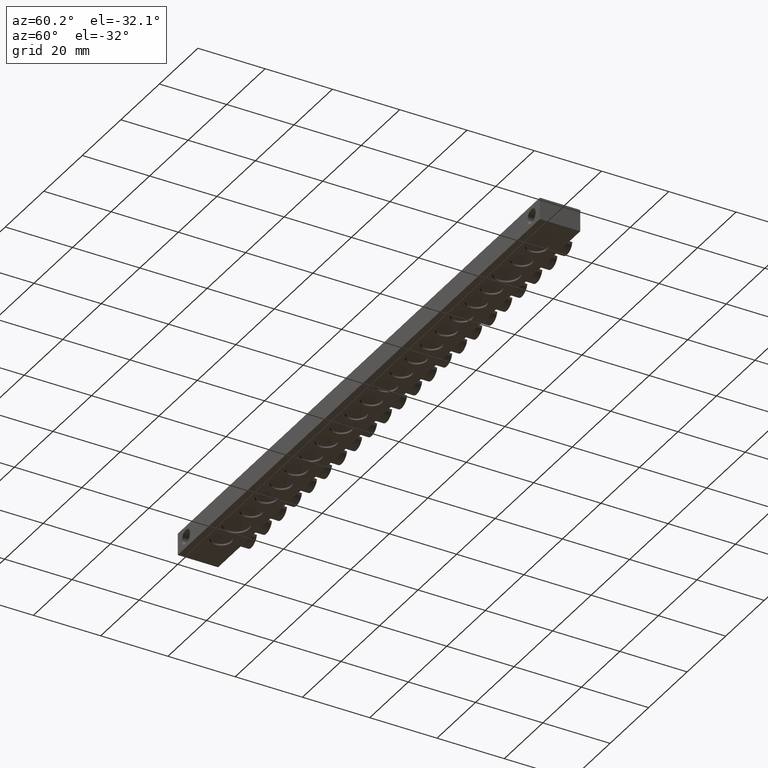
[diagram: clean part render]
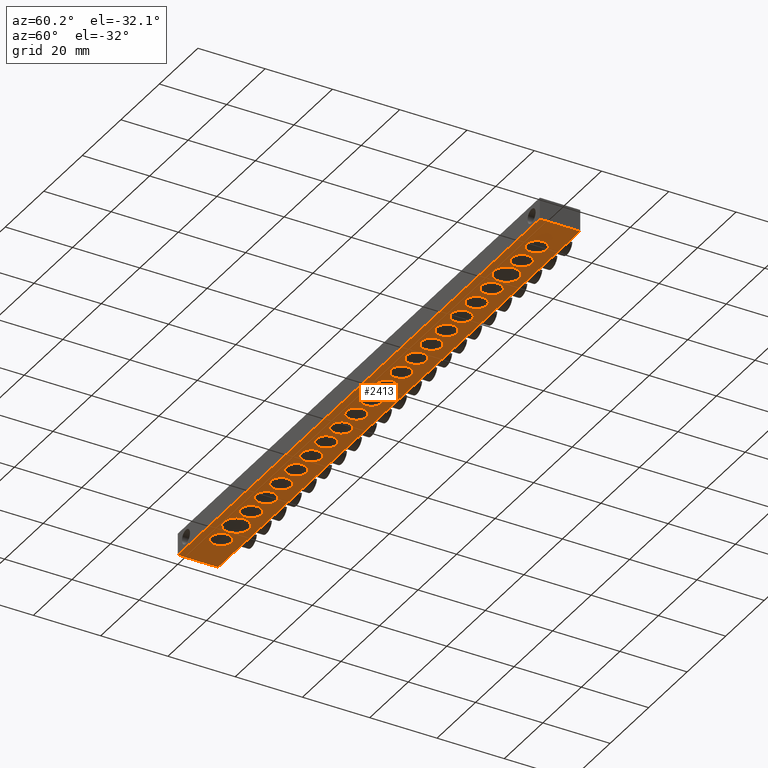
[diagram: same view with one face highlighted and labeled with its STEP entity id]
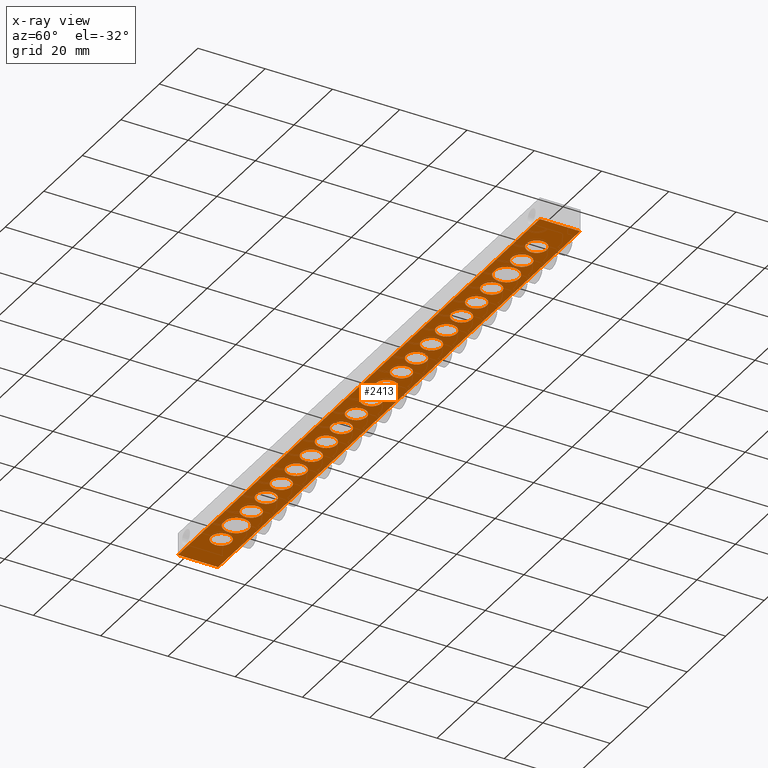
[diagram: x-ray of the same camera — body ghosted, the highlighted face saturated]
A machine part, auxiliary view. The second image highlights one B-rep face of the part: STEP entity #2413.
The next image is the same camera in x-ray: the body ghosted, the highlighted face saturated — about 0% of this face is hidden behind the body in this view.
In plain terms, the highlighted planar face has unit normal (0, 0, -1).
Its self-contained STEP definition (entity closure, byte-faithful):
#671 = ORIENTED_EDGE ( 'NONE', *, *, #2219, .F. ) ;
#734 = ORIENTED_EDGE ( 'NONE', *, *, #3153, .F. ) ;
#906 = EDGE_LOOP ( 'NONE', ( #7807, #7815 ) ) ;
#908 = EDGE_LOOP ( 'NONE', ( #7772, #7798 ) ) ;
#910 = EDGE_LOOP ( 'NONE', ( #7740, #7784 ) ) ;
#925 = EDGE_LOOP ( 'NONE', ( #7757, #7774 ) ) ;
#944 = EDGE_LOOP ( 'NONE', ( #7788, #7767 ) ) ;
#945 = EDGE_LOOP ( 'NONE', ( #7822, #7769 ) ) ;
#946 = EDGE_LOOP ( 'NONE', ( #7768, #7855 ) ) ;
#956 = EDGE_LOOP ( 'NONE', ( #7787, #7793 ) ) ;
#957 = EDGE_LOOP ( 'NONE', ( #7732, #7778 ) ) ;
#959 = EDGE_LOOP ( 'NONE', ( #671, #734 ) ) ;
#964 = EDGE_LOOP ( 'NONE', ( #7779, #7771 ) ) ;
#971 = EDGE_LOOP ( 'NONE', ( #7826, #7812 ) ) ;
#981 = EDGE_LOOP ( 'NONE', ( #7746, #7747 ) ) ;
#984 = EDGE_LOOP ( 'NONE', ( #7817, #7844 ) ) ;
#986 = EDGE_LOOP ( 'NONE', ( #7785, #7806 ) ) ;
#1003 = EDGE_LOOP ( 'NONE', ( #7765, #7750 ) ) ;
#1004 = EDGE_LOOP ( 'NONE', ( #7752, #7755 ) ) ;
#1018 = EDGE_LOOP ( 'NONE', ( #7840, #7800 ) ) ;
#1023 = EDGE_LOOP ( 'NONE', ( #7759, #7731 ) ) ;
#1025 = EDGE_LOOP ( 'NONE', ( #7760, #7761 ) ) ;
#1031 = EDGE_LOOP ( 'NONE', ( #7808, #7829 ) ) ;
#1034 = EDGE_LOOP ( 'NONE', ( #7853, #7828, #7825, #7818 ) ) ;
#1052 = EDGE_LOOP ( 'NONE', ( #7839, #7770 ) ) ;
#1360 = VERTEX_POINT ( 'NONE', #11014 ) ;
#1365 = VERTEX_POINT ( 'NONE', #11015 ) ;
#1366 = VERTEX_POINT ( 'NONE', #11024 ) ;
#1378 = VERTEX_POINT ( 'NONE', #11028 ) ;
#1379 = VERTEX_POINT ( 'NONE', #11040 ) ;
#1393 = VERTEX_POINT ( 'NONE', #11029 ) ;
#1400 = VERTEX_POINT ( 'NONE', #10997 ) ;
#1401 = VERTEX_POINT ( 'NONE', #11053 ) ;
#1408 = VERTEX_POINT ( 'NONE', #10999 ) ;
#1409 = VERTEX_POINT ( 'NONE', #11013 ) ;
#1413 = VERTEX_POINT ( 'NONE', #11035 ) ;
#1418 = VERTEX_POINT ( 'NONE', #11046 ) ;
#1419 = VERTEX_POINT ( 'NONE', #11047 ) ;
#1420 = VERTEX_POINT ( 'NONE', #11049 ) ;
#1421 = VERTEX_POINT ( 'NONE', #11051 ) ;
#1422 = VERTEX_POINT ( 'NONE', #11052 ) ;
#1424 = VERTEX_POINT ( 'NONE', #10993 ) ;
#1425 = VERTEX_POINT ( 'NONE', #11000 ) ;
#1426 = VERTEX_POINT ( 'NONE', #11001 ) ;
#1427 = VERTEX_POINT ( 'NONE', #11002 ) ;
#1428 = VERTEX_POINT ( 'NONE', #11003 ) ;
#1435 = VERTEX_POINT ( 'NONE', #11069 ) ;
#1437 = VERTEX_POINT ( 'NONE', #11102 ) ;
#1440 = VERTEX_POINT ( 'NONE', #11087 ) ;
#1449 = VERTEX_POINT ( 'NONE', #11093 ) ;
#1453 = VERTEX_POINT ( 'NONE', #11066 ) ;
#1455 = VERTEX_POINT ( 'NONE', #11109 ) ;
#1464 = VERTEX_POINT ( 'NONE', #11100 ) ;
#2154 = EDGE_CURVE ( 'NONE', #10692, #10678, #5767, .T. ) ;
#2163 = EDGE_CURVE ( 'NONE', #10698, #10700, #5827, .T. ) ;
#2195 = EDGE_CURVE ( 'NONE', #10732, #10731, #7033, .T. ) ;
#2219 = EDGE_CURVE ( 'NONE', #10714, #10666, #7105, .T. ) ;
#2221 = EDGE_CURVE ( 'NONE', #1408, #1435, #7099, .T. ) ;
#2224 = EDGE_CURVE ( 'NONE', #1393, #1365, #7100, .T. ) ;
#2231 = EDGE_CURVE ( 'NONE', #10720, #10704, #7130, .T. ) ;
#2235 = EDGE_CURVE ( 'NONE', #10699, #10693, #7107, .T. ) ;
#2236 = EDGE_CURVE ( 'NONE', #1464, #1418, #7112, .T. ) ;
#2249 = EDGE_CURVE ( 'NONE', #10705, #10719, #7094, .T. ) ;
#2252 = EDGE_CURVE ( 'NONE', #10683, #10681, #7149, .T. ) ;
#2257 = EDGE_CURVE ( 'NONE', #1379, #1427, #7144, .T. ) ;
#2262 = EDGE_CURVE ( 'NONE', #1400, #1428, #7159, .T. ) ;
#2268 = EDGE_CURVE ( 'NONE', #10713, #10676, #7180, .T. ) ;
#2279 = EDGE_CURVE ( 'NONE', #10718, #10665, #7183, .T. ) ;
#2413 = ADVANCED_FACE ( 'NONE', ( #6332, #6342, #6298, #6304, #6300, #6306, #6326, #6320, #6335, #6301, #6296, #6343, #6339, #6340, #6327, #6338, #6322, #6346, #6328, #6303, #6323, #6333, #6336 ), #6319, .T. ) ;
#2691 = EDGE_CURVE ( 'NONE', #1424, #1440, #3630, .T. ) ;
#2705 = EDGE_CURVE ( 'NONE', #1419, #1424, #3692, .T. ) ;
#3135 = EDGE_CURVE ( 'NONE', #1409, #1425, #4805, .T. ) ;
#3136 = EDGE_CURVE ( 'NONE', #10676, #10713, #4804, .T. ) ;
#3140 = EDGE_CURVE ( 'NONE', #10704, #10720, #4822, .T. ) ;
#3146 = EDGE_CURVE ( 'NONE', #1435, #1408, #4806, .T. ) ;
#3147 = EDGE_CURVE ( 'NONE', #1360, #1453, #4809, .T. ) ;
#3148 = EDGE_CURVE ( 'NONE', #10678, #10692, #4830, .T. ) ;
#3149 = EDGE_CURVE ( 'NONE', #10700, #10698, #4828, .T. ) ;
#3150 = EDGE_CURVE ( 'NONE', #10719, #10705, #4781, .T. ) ;
#3153 = EDGE_CURVE ( 'NONE', #10666, #10714, #4782, .T. ) ;
#3154 = EDGE_CURVE ( 'NONE', #10693, #10699, #4814, .T. ) ;
#3166 = EDGE_CURVE ( 'NONE', #1428, #1400, #4792, .T. ) ;
#3170 = EDGE_CURVE ( 'NONE', #1426, #1419, #11923, .T. ) ;
#3176 = EDGE_CURVE ( 'NONE', #10681, #10683, #4328, .T. ) ;
#3186 = EDGE_CURVE ( 'NONE', #1365, #1393, #4324, .T. ) ;
#3187 = EDGE_CURVE ( 'NONE', #10731, #10732, #4340, .T. ) ;
#3188 = EDGE_CURVE ( 'NONE', #1418, #1464, #4315, .T. ) ;
#3192 = EDGE_CURVE ( 'NONE', #10665, #10718, #4343, .T. ) ;
#3630 = LINE ( 'NONE', #3660, #5490 ) ;
#3651 = DIRECTION ( 'NONE',  ( 0.0000000000000000000, 1.000000000000000000, 0.0000000000000000000 ) ) ;
#3660 = CARTESIAN_POINT ( 'NONE',  ( 188.0000000000000000, 0.0000000000000000000, 0.0000000000000000000 ) ) ;
#3664 = CARTESIAN_POINT ( 'NONE',  ( 0.0000000000000000000, 0.0000000000000000000, 0.0000000000000000000 ) ) ;
#3678 = DIRECTION ( 'NONE',  ( 1.000000000000000000, 0.0000000000000000000, 0.0000000000000000000 ) ) ;
#3692 = LINE ( 'NONE', #3664, #9464 ) ;
#4304 = AXIS2_PLACEMENT_3D ( 'NONE', #12023, #12007, #12004 ) ;
#4310 = AXIS2_PLACEMENT_3D ( 'NONE', #11995, #11993, #12027 ) ;
#4315 = CIRCLE ( 'NONE', #4304, 3.000000000000002700 ) ;
#4320 = AXIS2_PLACEMENT_3D ( 'NONE', #11990, #12015, #12017 ) ;
#4324 = CIRCLE ( 'NONE', #4339, 3.000000000000002700 ) ;
#4328 = CIRCLE ( 'NONE', #4349, 2.999999999999988900 ) ;
#4339 = AXIS2_PLACEMENT_3D ( 'NONE', #12014, #11994, #11999 ) ;
#4340 = CIRCLE ( 'NONE', #4310, 2.999999999999995600 ) ;
#4343 = CIRCLE ( 'NONE', #4320, 2.999999999999988900 ) ;
#4349 = AXIS2_PLACEMENT_3D ( 'NONE', #11956, #11976, #11961 ) ;
#4769 = AXIS2_PLACEMENT_3D ( 'NONE', #11888, #11896, #11869 ) ;
#4775 = AXIS2_PLACEMENT_3D ( 'NONE', #11824, #11844, #11818 ) ;
#4777 = AXIS2_PLACEMENT_3D ( 'NONE', #11867, #11853, #11872 ) ;
#4779 = AXIS2_PLACEMENT_3D ( 'NONE', #11775, #11845, #11828 ) ;
#4781 = CIRCLE ( 'NONE', #4777, 2.999999999999988900 ) ;
#4782 = CIRCLE ( 'NONE', #4787, 2.999999999999995600 ) ;
#4785 = AXIS2_PLACEMENT_3D ( 'NONE', #11815, #11843, #11848 ) ;
#4787 = AXIS2_PLACEMENT_3D ( 'NONE', #11875, #11861, #11873 ) ;
#4792 = CIRCLE ( 'NONE', #4808, 2.999999999999988900 ) ;
#4804 = CIRCLE ( 'NONE', #4779, 2.999999999999988900 ) ;
#4805 = CIRCLE ( 'NONE', #4810, 3.750000000000000000 ) ;
#4806 = CIRCLE ( 'NONE', #4827, 2.999999999999988900 ) ;
#4808 = AXIS2_PLACEMENT_3D ( 'NONE', #11898, #11900, #11916 ) ;
#4809 = CIRCLE ( 'NONE', #4785, 3.750000000000003600 ) ;
#4810 = AXIS2_PLACEMENT_3D ( 'NONE', #11795, #11796, #11797 ) ;
#4811 = AXIS2_PLACEMENT_3D ( 'NONE', #11852, #11868, #11876 ) ;
#4814 = CIRCLE ( 'NONE', #4811, 2.999999999999988900 ) ;
#4822 = CIRCLE ( 'NONE', #4775, 2.999999999999988900 ) ;
#4827 = AXIS2_PLACEMENT_3D ( 'NONE', #11847, #11838, #11822 ) ;
#4828 = CIRCLE ( 'NONE', #4769, 2.999999999999995600 ) ;
#4830 = CIRCLE ( 'NONE', #4832, 2.999999999999995600 ) ;
#4832 = AXIS2_PLACEMENT_3D ( 'NONE', #11854, #11855, #11894 ) ;
#4836 = VECTOR ( 'NONE', #11919, 1000.000000000000000 ) ;
#4840 = CARTESIAN_POINT ( 'NONE',  ( 43.30000000000000400, 5.999999999999937800, 0.0000000000000000000 ) ) ;
#4843 = DIRECTION ( 'NONE',  ( 0.0000000000000000000, 0.0000000000000000000, -1.000000000000000000 ) ) ;
#4849 = DIRECTION ( 'NONE',  ( -1.000000000000000000, 0.0000000000000000000, 0.0000000000000000000 ) ) ;
#4943 = CARTESIAN_POINT ( 'NONE',  ( 51.10000000000000900, 5.999999999999936100, 0.0000000000000000000 ) ) ;
#4944 = DIRECTION ( 'NONE',  ( -1.000000000000000000, 0.0000000000000000000, 0.0000000000000000000 ) ) ;
#4955 = DIRECTION ( 'NONE',  ( 0.0000000000000000000, 0.0000000000000000000, -1.000000000000000000 ) ) ;
#5012 = DIRECTION ( 'NONE',  ( 0.0000000000000000000, 0.0000000000000000000, -1.000000000000000000 ) ) ;
#5026 = DIRECTION ( 'NONE',  ( -1.000000000000000000, 0.0000000000000000000, 0.0000000000000000000 ) ) ;
#5027 = DIRECTION ( 'NONE',  ( 0.0000000000000000000, 0.0000000000000000000, -1.000000000000000000 ) ) ;
#5028 = DIRECTION ( 'NONE',  ( -1.000000000000000000, 0.0000000000000000000, 0.0000000000000000000 ) ) ;
#5039 = CARTESIAN_POINT ( 'NONE',  ( 27.70000000000000300, 5.999999999999941400, 0.0000000000000000000 ) ) ;
#5041 = CARTESIAN_POINT ( 'NONE',  ( 105.6999999999999900, 5.999999999999923600, 0.0000000000000000000 ) ) ;
#5043 = DIRECTION ( 'NONE',  ( 0.0000000000000000000, 0.0000000000000000000, -1.000000000000000000 ) ) ;
#5048 = DIRECTION ( 'NONE',  ( -1.000000000000000000, 0.0000000000000000000, 0.0000000000000000000 ) ) ;
#5052 = CARTESIAN_POINT ( 'NONE',  ( 136.9000000000000100, 5.999999999999916500, 0.0000000000000000000 ) ) ;
#5072 = CARTESIAN_POINT ( 'NONE',  ( 90.09999999999999400, 5.999999999999927200, 0.0000000000000000000 ) ) ;
#5074 = DIRECTION ( 'NONE',  ( 0.0000000000000000000, 0.0000000000000000000, -1.000000000000000000 ) ) ;
#5075 = DIRECTION ( 'NONE',  ( -1.000000000000000000, 0.0000000000000000000, 0.0000000000000000000 ) ) ;
#5094 = CARTESIAN_POINT ( 'NONE',  ( 129.0999999999999900, 5.999999999999918300, 0.0000000000000000000 ) ) ;
#5096 = DIRECTION ( 'NONE',  ( 0.0000000000000000000, 0.0000000000000000000, -1.000000000000000000 ) ) ;
#5097 = CARTESIAN_POINT ( 'NONE',  ( 97.90000000000000600, 5.999999999999925400, 0.0000000000000000000 ) ) ;
#5098 = DIRECTION ( 'NONE',  ( -1.000000000000000000, 0.0000000000000000000, 0.0000000000000000000 ) ) ;
#5099 = DIRECTION ( 'NONE',  ( 0.0000000000000000000, 0.0000000000000000000, -1.000000000000000000 ) ) ;
#5104 = DIRECTION ( 'NONE',  ( -1.000000000000000000, 0.0000000000000000000, 0.0000000000000000000 ) ) ;
#5111 = DIRECTION ( 'NONE',  ( -1.000000000000000000, 0.0000000000000000000, 0.0000000000000000000 ) ) ;
#5113 = DIRECTION ( 'NONE',  ( 0.0000000000000000000, 0.0000000000000000000, -1.000000000000000000 ) ) ;
#5118 = CARTESIAN_POINT ( 'NONE',  ( 121.3000000000000000, 5.999999999999920100, 0.0000000000000000000 ) ) ;
#5120 = DIRECTION ( 'NONE',  ( 0.0000000000000000000, 0.0000000000000000000, -1.000000000000000000 ) ) ;
#5136 = CARTESIAN_POINT ( 'NONE',  ( 58.89999999999999100, 5.999999999999934300, 0.0000000000000000000 ) ) ;
#5140 = DIRECTION ( 'NONE',  ( 0.0000000000000000000, 0.0000000000000000000, -1.000000000000000000 ) ) ;
#5144 = DIRECTION ( 'NONE',  ( -1.000000000000000000, 0.0000000000000000000, 0.0000000000000000000 ) ) ;
#5146 = DIRECTION ( 'NONE',  ( -1.000000000000000000, 0.0000000000000000000, 0.0000000000000000000 ) ) ;
#5148 = CARTESIAN_POINT ( 'NONE',  ( 74.50000000000000000, 5.999999999999930700, 0.0000000000000000000 ) ) ;
#5154 = DIRECTION ( 'NONE',  ( -1.000000000000000000, 0.0000000000000000000, 0.0000000000000000000 ) ) ;
#5161 = DIRECTION ( 'NONE',  ( 0.0000000000000000000, 0.0000000000000000000, -1.000000000000000000 ) ) ;
#5166 = CARTESIAN_POINT ( 'NONE',  ( 113.4999999999999900, 5.999999999999921800, 0.0000000000000000000 ) ) ;
#5169 = DIRECTION ( 'NONE',  ( 0.0000000000000000000, 0.0000000000000000000, -1.000000000000000000 ) ) ;
#5179 = CARTESIAN_POINT ( 'NONE',  ( 66.69999999999998900, 5.999999999999932500, 0.0000000000000000000 ) ) ;
#5184 = DIRECTION ( 'NONE',  ( -1.000000000000000000, 0.0000000000000000000, 0.0000000000000000000 ) ) ;
#5210 = DIRECTION ( 'NONE',  ( 0.0000000000000000000, 0.0000000000000000000, -1.000000000000000000 ) ) ;
#5217 = CARTESIAN_POINT ( 'NONE',  ( 82.29999999999999700, 5.999999999999928900, 0.0000000000000000000 ) ) ;
#5235 = DIRECTION ( 'NONE',  ( -1.000000000000000000, 0.0000000000000000000, 0.0000000000000000000 ) ) ;
#5400 = CARTESIAN_POINT ( 'NONE',  ( 35.50000000000000700, 5.999999999999939600, 0.0000000000000000000 ) ) ;
#5411 = DIRECTION ( 'NONE',  ( 0.0000000000000000000, 0.0000000000000000000, -1.000000000000000000 ) ) ;
#5427 = DIRECTION ( 'NONE',  ( -1.000000000000000000, 0.0000000000000000000, 0.0000000000000000000 ) ) ;
#5490 = VECTOR ( 'NONE', #3651, 1000.000000000000000 ) ;
#5733 = AXIS2_PLACEMENT_3D ( 'NONE', #5400, #5411, #5427 ) ;
#5767 = CIRCLE ( 'NONE', #5733, 2.999999999999995600 ) ;
#5827 = CIRCLE ( 'NONE', #5828, 2.999999999999995600 ) ;
#5828 = AXIS2_PLACEMENT_3D ( 'NONE', #4840, #4843, #4849 ) ;
#6296 = FACE_BOUND ( 'NONE', #945, .T. ) ;
#6298 = FACE_BOUND ( 'NONE', #944, .T. ) ;
#6300 = FACE_BOUND ( 'NONE', #910, .T. ) ;
#6301 = FACE_BOUND ( 'NONE', #956, .T. ) ;
#6303 = FACE_BOUND ( 'NONE', #986, .T. ) ;
#6304 = FACE_BOUND ( 'NONE', #981, .T. ) ;
#6306 = FACE_BOUND ( 'NONE', #1003, .T. ) ;
#6319 = PLANE ( 'NONE',  #6966 ) ;
#6320 = FACE_BOUND ( 'NONE', #925, .T. ) ;
#6321 = CARTESIAN_POINT ( 'NONE',  ( 0.0000000000000000000, 12.00000000000000000, 0.0000000000000000000 ) ) ;
#6322 = FACE_BOUND ( 'NONE', #964, .T. ) ;
#6323 = FACE_BOUND ( 'NONE', #971, .T. ) ;
#6326 = FACE_BOUND ( 'NONE', #1004, .T. ) ;
#6327 = FACE_BOUND ( 'NONE', #1018, .T. ) ;
#6328 = FACE_BOUND ( 'NONE', #1052, .T. ) ;
#6330 = DIRECTION ( 'NONE',  ( 0.0000000000000000000, 0.0000000000000000000, -1.000000000000000000 ) ) ;
#6331 = DIRECTION ( 'NONE',  ( -1.000000000000000000, 0.0000000000000000000, -0.0000000000000000000 ) ) ;
#6332 = FACE_BOUND ( 'NONE', #959, .T. ) ;
#6333 = FACE_BOUND ( 'NONE', #1031, .T. ) ;
#6335 = FACE_BOUND ( 'NONE', #1025, .T. ) ;
#6336 = FACE_OUTER_BOUND ( 'NONE', #1034, .T. ) ;
#6338 = FACE_BOUND ( 'NONE', #946, .T. ) ;
#6339 = FACE_BOUND ( 'NONE', #957, .T. ) ;
#6340 = FACE_BOUND ( 'NONE', #908, .T. ) ;
#6342 = FACE_BOUND ( 'NONE', #1023, .T. ) ;
#6343 = FACE_BOUND ( 'NONE', #984, .T. ) ;
#6346 = FACE_BOUND ( 'NONE', #906, .T. ) ;
#6966 = AXIS2_PLACEMENT_3D ( 'NONE', #6321, #6330, #6331 ) ;
#7033 = CIRCLE ( 'NONE', #7077, 2.999999999999995600 ) ;
#7077 = AXIS2_PLACEMENT_3D ( 'NONE', #4943, #4955, #4944 ) ;
#7088 = AXIS2_PLACEMENT_3D ( 'NONE', #5041, #5027, #5028 ) ;
#7089 = AXIS2_PLACEMENT_3D ( 'NONE', #5052, #5043, #5048 ) ;
#7094 = CIRCLE ( 'NONE', #7156, 2.999999999999988900 ) ;
#7099 = CIRCLE ( 'NONE', #7088, 2.999999999999988900 ) ;
#7100 = CIRCLE ( 'NONE', #7089, 3.000000000000002700 ) ;
#7103 = AXIS2_PLACEMENT_3D ( 'NONE', #5072, #5074, #5075 ) ;
#7105 = CIRCLE ( 'NONE', #7116, 2.999999999999995600 ) ;
#7107 = CIRCLE ( 'NONE', #7111, 2.999999999999988900 ) ;
#7111 = AXIS2_PLACEMENT_3D ( 'NONE', #5097, #5099, #5104 ) ;
#7112 = CIRCLE ( 'NONE', #7137, 3.000000000000002700 ) ;
#7116 = AXIS2_PLACEMENT_3D ( 'NONE', #5039, #5012, #5026 ) ;
#7130 = CIRCLE ( 'NONE', #7103, 2.999999999999988900 ) ;
#7137 = AXIS2_PLACEMENT_3D ( 'NONE', #5094, #5096, #5098 ) ;
#7144 = CIRCLE ( 'NONE', #7148, 2.999999999999988900 ) ;
#7148 = AXIS2_PLACEMENT_3D ( 'NONE', #5118, #5120, #5146 ) ;
#7149 = CIRCLE ( 'NONE', #7150, 2.999999999999988900 ) ;
#7150 = AXIS2_PLACEMENT_3D ( 'NONE', #5136, #5113, #5111 ) ;
#7152 = AXIS2_PLACEMENT_3D ( 'NONE', #5166, #5161, #5154 ) ;
#7156 = AXIS2_PLACEMENT_3D ( 'NONE', #5148, #5140, #5144 ) ;
#7159 = CIRCLE ( 'NONE', #7152, 2.999999999999988900 ) ;
#7178 = AXIS2_PLACEMENT_3D ( 'NONE', #5217, #5210, #5235 ) ;
#7180 = CIRCLE ( 'NONE', #7199, 2.999999999999988900 ) ;
#7183 = CIRCLE ( 'NONE', #7178, 2.999999999999988900 ) ;
#7199 = AXIS2_PLACEMENT_3D ( 'NONE', #5179, #5169, #5184 ) ;
#7731 = ORIENTED_EDGE ( 'NONE', *, *, #3148, .F. ) ;
#7732 = ORIENTED_EDGE ( 'NONE', *, *, #2257, .F. ) ;
#7740 = ORIENTED_EDGE ( 'NONE', *, *, #2252, .F. ) ;
#7746 = ORIENTED_EDGE ( 'NONE', *, *, #2195, .F. ) ;
#7747 = ORIENTED_EDGE ( 'NONE', *, *, #3187, .F. ) ;
#7750 = ORIENTED_EDGE ( 'NONE', *, *, #3136, .F. ) ;
#7752 = ORIENTED_EDGE ( 'NONE', *, *, #2249, .F. ) ;
#7755 = ORIENTED_EDGE ( 'NONE', *, *, #3150, .F. ) ;
#7757 = ORIENTED_EDGE ( 'NONE', *, *, #2279, .F. ) ;
#7759 = ORIENTED_EDGE ( 'NONE', *, *, #2154, .F. ) ;
#7760 = ORIENTED_EDGE ( 'NONE', *, *, #2231, .F. ) ;
#7761 = ORIENTED_EDGE ( 'NONE', *, *, #3140, .F. ) ;
#7765 = ORIENTED_EDGE ( 'NONE', *, *, #2268, .F. ) ;
#7767 = ORIENTED_EDGE ( 'NONE', *, *, #3149, .F. ) ;
#7768 = ORIENTED_EDGE ( 'NONE', *, *, #9442, .F. ) ;
#7769 = ORIENTED_EDGE ( 'NONE', *, *, #3146, .F. ) ;
#7770 = ORIENTED_EDGE ( 'NONE', *, *, #9410, .F. ) ;
#7771 = ORIENTED_EDGE ( 'NONE', *, *, #9415, .F. ) ;
#7772 = ORIENTED_EDGE ( 'NONE', *, *, #2236, .F. ) ;
#7774 = ORIENTED_EDGE ( 'NONE', *, *, #3192, .F. ) ;
#7778 = ORIENTED_EDGE ( 'NONE', *, *, #9425, .F. ) ;
#7779 = ORIENTED_EDGE ( 'NONE', *, *, #9460, .F. ) ;
#7784 = ORIENTED_EDGE ( 'NONE', *, *, #3176, .F. ) ;
#7785 = ORIENTED_EDGE ( 'NONE', *, *, #9434, .F. ) ;
#7787 = ORIENTED_EDGE ( 'NONE', *, *, #2235, .F. ) ;
#7788 = ORIENTED_EDGE ( 'NONE', *, *, #2163, .F. ) ;
#7793 = ORIENTED_EDGE ( 'NONE', *, *, #3154, .F. ) ;
#7798 = ORIENTED_EDGE ( 'NONE', *, *, #3188, .F. ) ;
#7800 = ORIENTED_EDGE ( 'NONE', *, *, #3186, .F. ) ;
#7806 = ORIENTED_EDGE ( 'NONE', *, *, #9458, .F. ) ;
#7807 = ORIENTED_EDGE ( 'NONE', *, *, #9451, .F. ) ;
#7808 = ORIENTED_EDGE ( 'NONE', *, *, #9424, .F. ) ;
#7812 = ORIENTED_EDGE ( 'NONE', *, *, #3135, .F. ) ;
#7815 = ORIENTED_EDGE ( 'NONE', *, *, #3147, .F. ) ;
#7817 = ORIENTED_EDGE ( 'NONE', *, *, #2262, .F. ) ;
#7818 = ORIENTED_EDGE ( 'NONE', *, *, #2705, .F. ) ;
#7822 = ORIENTED_EDGE ( 'NONE', *, *, #2221, .F. ) ;
#7825 = ORIENTED_EDGE ( 'NONE', *, *, #2691, .F. ) ;
#7826 = ORIENTED_EDGE ( 'NONE', *, *, #9404, .F. ) ;
#7828 = ORIENTED_EDGE ( 'NONE', *, *, #9408, .F. ) ;
#7829 = ORIENTED_EDGE ( 'NONE', *, *, #9412, .F. ) ;
#7839 = ORIENTED_EDGE ( 'NONE', *, *, #9400, .F. ) ;
#7840 = ORIENTED_EDGE ( 'NONE', *, *, #2224, .F. ) ;
#7844 = ORIENTED_EDGE ( 'NONE', *, *, #3166, .F. ) ;
#7853 = ORIENTED_EDGE ( 'NONE', *, *, #3170, .F. ) ;
#7855 = ORIENTED_EDGE ( 'NONE', *, *, #9431, .F. ) ;
#9400 = EDGE_CURVE ( 'NONE', #1437, #1401, #14049, .T. ) ;
#9404 = EDGE_CURVE ( 'NONE', #1425, #1409, #14054, .T. ) ;
#9408 = EDGE_CURVE ( 'NONE', #1440, #1426, #13964, .T. ) ;
#9410 = EDGE_CURVE ( 'NONE', #1401, #1437, #14088, .T. ) ;
#9412 = EDGE_CURVE ( 'NONE', #1455, #1413, #14078, .T. ) ;
#9415 = EDGE_CURVE ( 'NONE', #1420, #1449, #14087, .T. ) ;
#9424 = EDGE_CURVE ( 'NONE', #1413, #1455, #14137, .T. ) ;
#9425 = EDGE_CURVE ( 'NONE', #1427, #1379, #14109, .T. ) ;
#9431 = EDGE_CURVE ( 'NONE', #1422, #1378, #14158, .T. ) ;
#9434 = EDGE_CURVE ( 'NONE', #1366, #1421, #14131, .T. ) ;
#9442 = EDGE_CURVE ( 'NONE', #1378, #1422, #14113, .T. ) ;
#9451 = EDGE_CURVE ( 'NONE', #1453, #1360, #14117, .T. ) ;
#9458 = EDGE_CURVE ( 'NONE', #1421, #1366, #14192, .T. ) ;
#9460 = EDGE_CURVE ( 'NONE', #1449, #1420, #14178, .T. ) ;
#9464 = VECTOR ( 'NONE', #3678, 1000.000000000000000 ) ;
#10665 = VERTEX_POINT ( 'NONE', #13037 ) ;
#10666 = VERTEX_POINT ( 'NONE', #13027 ) ;
#10676 = VERTEX_POINT ( 'NONE', #13057 ) ;
#10678 = VERTEX_POINT ( 'NONE', #13062 ) ;
#10681 = VERTEX_POINT ( 'NONE', #13038 ) ;
#10683 = VERTEX_POINT ( 'NONE', #13056 ) ;
#10692 = VERTEX_POINT ( 'NONE', #13060 ) ;
#10693 = VERTEX_POINT ( 'NONE', #13084 ) ;
#10698 = VERTEX_POINT ( 'NONE', #13103 ) ;
#10699 = VERTEX_POINT ( 'NONE', #13112 ) ;
#10700 = VERTEX_POINT ( 'NONE', #13085 ) ;
#10704 = VERTEX_POINT ( 'NONE', #13104 ) ;
#10705 = VERTEX_POINT ( 'NONE', #13090 ) ;
#10713 = VERTEX_POINT ( 'NONE', #13064 ) ;
#10714 = VERTEX_POINT ( 'NONE', #13065 ) ;
#10718 = VERTEX_POINT ( 'NONE', #13086 ) ;
#10719 = VERTEX_POINT ( 'NONE', #13055 ) ;
#10720 = VERTEX_POINT ( 'NONE', #13115 ) ;
#10731 = VERTEX_POINT ( 'NONE', #13094 ) ;
#10732 = VERTEX_POINT ( 'NONE', #13105 ) ;
#10993 = CARTESIAN_POINT ( 'NONE',  ( 188.0000000000000000, 0.0000000000000000000, 0.0000000000000000000 ) ) ;
#10997 = CARTESIAN_POINT ( 'NONE',  ( 116.4999999999999700, 5.999999999999921800, 0.0000000000000000000 ) ) ;
#10999 = CARTESIAN_POINT ( 'NONE',  ( 108.6999999999999700, 5.999999999999923600, 0.0000000000000000000 ) ) ;
#11000 = CARTESIAN_POINT ( 'NONE',  ( 23.65000000000000200, 6.000000000000000000, 0.0000000000000000000 ) ) ;
#11001 = CARTESIAN_POINT ( 'NONE',  ( 0.0000000000000000000, 12.00000000000000000, 0.0000000000000000000 ) ) ;
#11002 = CARTESIAN_POINT ( 'NONE',  ( 118.3000000000000000, 5.999999999999920100, 0.0000000000000000000 ) ) ;
#11003 = CARTESIAN_POINT ( 'NONE',  ( 110.5000000000000000, 5.999999999999921800, 0.0000000000000000000 ) ) ;
#11013 = CARTESIAN_POINT ( 'NONE',  ( 16.15000000000000200, 6.000000000000000900, 0.0000000000000000000 ) ) ;
#11014 = CARTESIAN_POINT ( 'NONE',  ( 156.5499999999999800, 5.999999999999916500, 0.0000000000000000000 ) ) ;
#11015 = CARTESIAN_POINT ( 'NONE',  ( 133.8999999999999800, 5.999999999999916500, 0.0000000000000000000 ) ) ;
#11024 = CARTESIAN_POINT ( 'NONE',  ( 178.9000000000000100, 6.000000000000015100, 0.0000000000000000000 ) ) ;
#11028 = CARTESIAN_POINT ( 'NONE',  ( 147.6999999999999900, 5.999999999999914700, 0.0000000000000000000 ) ) ;
#11029 = CARTESIAN_POINT ( 'NONE',  ( 139.9000000000000100, 5.999999999999916500, 0.0000000000000000000 ) ) ;
#11035 = CARTESIAN_POINT ( 'NONE',  ( 15.10000000000000000, 6.000000000000000000, 0.0000000000000000000 ) ) ;
#11040 = CARTESIAN_POINT ( 'NONE',  ( 124.2999999999999800, 5.999999999999920100, 0.0000000000000000000 ) ) ;
#11046 = CARTESIAN_POINT ( 'NONE',  ( 126.0999999999999900, 5.999999999999918300, 0.0000000000000000000 ) ) ;
#11047 = CARTESIAN_POINT ( 'NONE',  ( 0.0000000000000000000, 0.0000000000000000000, 0.0000000000000000000 ) ) ;
#11049 = CARTESIAN_POINT ( 'NONE',  ( 149.5000000000000000, 5.999999999999913000, 0.0000000000000000000 ) ) ;
#11051 = CARTESIAN_POINT ( 'NONE',  ( 172.9000000000000100, 6.000000000000015100, 0.0000000000000000000 ) ) ;
#11052 = CARTESIAN_POINT ( 'NONE',  ( 141.6999999999999900, 5.999999999999914700, 0.0000000000000000000 ) ) ;
#11053 = CARTESIAN_POINT ( 'NONE',  ( 165.0999999999999900, 5.999999999999960000, 0.0000000000000000000 ) ) ;
#11066 = CARTESIAN_POINT ( 'NONE',  ( 164.0500000000000100, 5.999999999999915600, 0.0000000000000000000 ) ) ;
#11069 = CARTESIAN_POINT ( 'NONE',  ( 102.7000000000000000, 5.999999999999923600, 0.0000000000000000000 ) ) ;
#11087 = CARTESIAN_POINT ( 'NONE',  ( 188.0000000000000000, 12.00000000000000000, 0.0000000000000000000 ) ) ;
#11093 = CARTESIAN_POINT ( 'NONE',  ( 155.5000000000000000, 5.999999999999913000, 0.0000000000000000000 ) ) ;
#11100 = CARTESIAN_POINT ( 'NONE',  ( 132.0999999999999900, 5.999999999999918300, 0.0000000000000000000 ) ) ;
#11102 = CARTESIAN_POINT ( 'NONE',  ( 171.0999999999999900, 5.999999999999960000, 0.0000000000000000000 ) ) ;
#11109 = CARTESIAN_POINT ( 'NONE',  ( 9.099999999999999600, 6.000000000000000000, 0.0000000000000000000 ) ) ;
#11775 = CARTESIAN_POINT ( 'NONE',  ( 66.69999999999998900, 5.999999999999932500, 0.0000000000000000000 ) ) ;
#11795 = CARTESIAN_POINT ( 'NONE',  ( 19.90000000000000200, 6.000000000000000000, 0.0000000000000000000 ) ) ;
#11796 = DIRECTION ( 'NONE',  ( 0.0000000000000000000, 0.0000000000000000000, -1.000000000000000000 ) ) ;
#11797 = DIRECTION ( 'NONE',  ( -1.000000000000000000, 0.0000000000000000000, 0.0000000000000000000 ) ) ;
#11815 = CARTESIAN_POINT ( 'NONE',  ( 160.3000000000000100, 5.999999999999915600, 0.0000000000000000000 ) ) ;
#11818 = DIRECTION ( 'NONE',  ( -1.000000000000000000, 0.0000000000000000000, 0.0000000000000000000 ) ) ;
#11822 = DIRECTION ( 'NONE',  ( -1.000000000000000000, 0.0000000000000000000, 0.0000000000000000000 ) ) ;
#11824 = CARTESIAN_POINT ( 'NONE',  ( 90.09999999999999400, 5.999999999999927200, 0.0000000000000000000 ) ) ;
#11828 = DIRECTION ( 'NONE',  ( -1.000000000000000000, 0.0000000000000000000, 0.0000000000000000000 ) ) ;
#11838 = DIRECTION ( 'NONE',  ( 0.0000000000000000000, 0.0000000000000000000, -1.000000000000000000 ) ) ;
#11843 = DIRECTION ( 'NONE',  ( 0.0000000000000000000, 0.0000000000000000000, -1.000000000000000000 ) ) ;
#11844 = DIRECTION ( 'NONE',  ( 0.0000000000000000000, 0.0000000000000000000, -1.000000000000000000 ) ) ;
#11845 = DIRECTION ( 'NONE',  ( 0.0000000000000000000, 0.0000000000000000000, -1.000000000000000000 ) ) ;
#11847 = CARTESIAN_POINT ( 'NONE',  ( 105.6999999999999900, 5.999999999999923600, 0.0000000000000000000 ) ) ;
#11848 = DIRECTION ( 'NONE',  ( -1.000000000000000000, 0.0000000000000000000, 0.0000000000000000000 ) ) ;
#11852 = CARTESIAN_POINT ( 'NONE',  ( 97.90000000000000600, 5.999999999999925400, 0.0000000000000000000 ) ) ;
#11853 = DIRECTION ( 'NONE',  ( 0.0000000000000000000, 0.0000000000000000000, -1.000000000000000000 ) ) ;
#11854 = CARTESIAN_POINT ( 'NONE',  ( 35.50000000000000700, 5.999999999999939600, 0.0000000000000000000 ) ) ;
#11855 = DIRECTION ( 'NONE',  ( 0.0000000000000000000, 0.0000000000000000000, -1.000000000000000000 ) ) ;
#11861 = DIRECTION ( 'NONE',  ( 0.0000000000000000000, 0.0000000000000000000, -1.000000000000000000 ) ) ;
#11867 = CARTESIAN_POINT ( 'NONE',  ( 74.50000000000000000, 5.999999999999930700, 0.0000000000000000000 ) ) ;
#11868 = DIRECTION ( 'NONE',  ( 0.0000000000000000000, 0.0000000000000000000, -1.000000000000000000 ) ) ;
#11869 = DIRECTION ( 'NONE',  ( -1.000000000000000000, 0.0000000000000000000, 0.0000000000000000000 ) ) ;
#11872 = DIRECTION ( 'NONE',  ( -1.000000000000000000, 0.0000000000000000000, 0.0000000000000000000 ) ) ;
#11873 = DIRECTION ( 'NONE',  ( -1.000000000000000000, 0.0000000000000000000, 0.0000000000000000000 ) ) ;
#11875 = CARTESIAN_POINT ( 'NONE',  ( 27.70000000000000300, 5.999999999999941400, 0.0000000000000000000 ) ) ;
#11876 = DIRECTION ( 'NONE',  ( -1.000000000000000000, 0.0000000000000000000, 0.0000000000000000000 ) ) ;
#11888 = CARTESIAN_POINT ( 'NONE',  ( 43.30000000000000400, 5.999999999999937800, 0.0000000000000000000 ) ) ;
#11894 = DIRECTION ( 'NONE',  ( -1.000000000000000000, 0.0000000000000000000, 0.0000000000000000000 ) ) ;
#11896 = DIRECTION ( 'NONE',  ( 0.0000000000000000000, 0.0000000000000000000, -1.000000000000000000 ) ) ;
#11898 = CARTESIAN_POINT ( 'NONE',  ( 113.4999999999999900, 5.999999999999921800, 0.0000000000000000000 ) ) ;
#11900 = DIRECTION ( 'NONE',  ( 0.0000000000000000000, 0.0000000000000000000, -1.000000000000000000 ) ) ;
#11916 = DIRECTION ( 'NONE',  ( -1.000000000000000000, 0.0000000000000000000, 0.0000000000000000000 ) ) ;
#11917 = CARTESIAN_POINT ( 'NONE',  ( 0.0000000000000000000, 0.0000000000000000000, 0.0000000000000000000 ) ) ;
#11919 = DIRECTION ( 'NONE',  ( -0.0000000000000000000, -1.000000000000000000, -0.0000000000000000000 ) ) ;
#11923 = LINE ( 'NONE', #11917, #4836 ) ;
#11956 = CARTESIAN_POINT ( 'NONE',  ( 58.89999999999999100, 5.999999999999934300, 0.0000000000000000000 ) ) ;
#11961 = DIRECTION ( 'NONE',  ( -1.000000000000000000, 0.0000000000000000000, 0.0000000000000000000 ) ) ;
#11976 = DIRECTION ( 'NONE',  ( 0.0000000000000000000, 0.0000000000000000000, -1.000000000000000000 ) ) ;
#11990 = CARTESIAN_POINT ( 'NONE',  ( 82.29999999999999700, 5.999999999999928900, 0.0000000000000000000 ) ) ;
#11993 = DIRECTION ( 'NONE',  ( 0.0000000000000000000, 0.0000000000000000000, -1.000000000000000000 ) ) ;
#11994 = DIRECTION ( 'NONE',  ( 0.0000000000000000000, 0.0000000000000000000, -1.000000000000000000 ) ) ;
#11995 = CARTESIAN_POINT ( 'NONE',  ( 51.10000000000000900, 5.999999999999936100, 0.0000000000000000000 ) ) ;
#11999 = DIRECTION ( 'NONE',  ( -1.000000000000000000, 0.0000000000000000000, 0.0000000000000000000 ) ) ;
#12004 = DIRECTION ( 'NONE',  ( -1.000000000000000000, 0.0000000000000000000, 0.0000000000000000000 ) ) ;
#12007 = DIRECTION ( 'NONE',  ( 0.0000000000000000000, 0.0000000000000000000, -1.000000000000000000 ) ) ;
#12014 = CARTESIAN_POINT ( 'NONE',  ( 136.9000000000000100, 5.999999999999916500, 0.0000000000000000000 ) ) ;
#12015 = DIRECTION ( 'NONE',  ( 0.0000000000000000000, 0.0000000000000000000, -1.000000000000000000 ) ) ;
#12017 = DIRECTION ( 'NONE',  ( -1.000000000000000000, 0.0000000000000000000, 0.0000000000000000000 ) ) ;
#12023 = CARTESIAN_POINT ( 'NONE',  ( 129.0999999999999900, 5.999999999999918300, 0.0000000000000000000 ) ) ;
#12027 = DIRECTION ( 'NONE',  ( -1.000000000000000000, 0.0000000000000000000, 0.0000000000000000000 ) ) ;
#12975 = CARTESIAN_POINT ( 'NONE',  ( 144.6999999999999900, 5.999999999999914700, 0.0000000000000000000 ) ) ;
#12979 = DIRECTION ( 'NONE',  ( 0.0000000000000000000, 0.0000000000000000000, -1.000000000000000000 ) ) ;
#12999 = DIRECTION ( 'NONE',  ( -1.000000000000000000, 0.0000000000000000000, 0.0000000000000000000 ) ) ;
#13007 = CARTESIAN_POINT ( 'NONE',  ( 175.9000000000000100, 6.000000000000015100, 0.0000000000000000000 ) ) ;
#13011 = DIRECTION ( 'NONE',  ( 0.0000000000000000000, 0.0000000000000000000, -1.000000000000000000 ) ) ;
#13018 = CARTESIAN_POINT ( 'NONE',  ( 152.5000000000000000, 5.999999999999913000, 0.0000000000000000000 ) ) ;
#13027 = CARTESIAN_POINT ( 'NONE',  ( 24.70000000000000600, 5.999999999999941400, 0.0000000000000000000 ) ) ;
#13031 = DIRECTION ( 'NONE',  ( 0.0000000000000000000, 0.0000000000000000000, -1.000000000000000000 ) ) ;
#13032 = DIRECTION ( 'NONE',  ( -1.000000000000000000, 0.0000000000000000000, 0.0000000000000000000 ) ) ;
#13037 = CARTESIAN_POINT ( 'NONE',  ( 79.30000000000001100, 5.999999999999928900, 0.0000000000000000000 ) ) ;
#13038 = CARTESIAN_POINT ( 'NONE',  ( 55.90000000000000600, 5.999999999999934300, 0.0000000000000000000 ) ) ;
#13040 = DIRECTION ( 'NONE',  ( -1.000000000000000000, 0.0000000000000000000, 0.0000000000000000000 ) ) ;
#13041 = CARTESIAN_POINT ( 'NONE',  ( 160.3000000000000100, 5.999999999999915600, 0.0000000000000000000 ) ) ;
#13043 = DIRECTION ( 'NONE',  ( 0.0000000000000000000, 0.0000000000000000000, -1.000000000000000000 ) ) ;
#13048 = DIRECTION ( 'NONE',  ( -1.000000000000000000, 0.0000000000000000000, 0.0000000000000000000 ) ) ;
#13055 = CARTESIAN_POINT ( 'NONE',  ( 71.50000000000001400, 5.999999999999930700, 0.0000000000000000000 ) ) ;
#13056 = CARTESIAN_POINT ( 'NONE',  ( 61.89999999999998400, 5.999999999999934300, 0.0000000000000000000 ) ) ;
#13057 = CARTESIAN_POINT ( 'NONE',  ( 63.70000000000001000, 5.999999999999932500, 0.0000000000000000000 ) ) ;
#13060 = CARTESIAN_POINT ( 'NONE',  ( 38.50000000000000000, 5.999999999999939600, 0.0000000000000000000 ) ) ;
#13062 = CARTESIAN_POINT ( 'NONE',  ( 32.50000000000000700, 5.999999999999939600, 0.0000000000000000000 ) ) ;
#13064 = CARTESIAN_POINT ( 'NONE',  ( 69.69999999999998900, 5.999999999999932500, 0.0000000000000000000 ) ) ;
#13065 = CARTESIAN_POINT ( 'NONE',  ( 30.69999999999999900, 5.999999999999941400, 0.0000000000000000000 ) ) ;
#13084 = CARTESIAN_POINT ( 'NONE',  ( 94.90000000000000600, 5.999999999999925400, 0.0000000000000000000 ) ) ;
#13085 = CARTESIAN_POINT ( 'NONE',  ( 40.30000000000001100, 5.999999999999937800, 0.0000000000000000000 ) ) ;
#13086 = CARTESIAN_POINT ( 'NONE',  ( 85.29999999999998300, 5.999999999999928900, 0.0000000000000000000 ) ) ;
#13090 = CARTESIAN_POINT ( 'NONE',  ( 77.49999999999998600, 5.999999999999930700, 0.0000000000000000000 ) ) ;
#13094 = CARTESIAN_POINT ( 'NONE',  ( 48.10000000000000900, 5.999999999999936100, 0.0000000000000000000 ) ) ;
#13103 = CARTESIAN_POINT ( 'NONE',  ( 46.30000000000000400, 5.999999999999937800, 0.0000000000000000000 ) ) ;
#13104 = CARTESIAN_POINT ( 'NONE',  ( 87.10000000000000900, 5.999999999999927200, 0.0000000000000000000 ) ) ;
#13105 = CARTESIAN_POINT ( 'NONE',  ( 54.10000000000000100, 5.999999999999936100, 0.0000000000000000000 ) ) ;
#13112 = CARTESIAN_POINT ( 'NONE',  ( 100.8999999999999900, 5.999999999999925400, 0.0000000000000000000 ) ) ;
#13115 = CARTESIAN_POINT ( 'NONE',  ( 93.09999999999999400, 5.999999999999927200, 0.0000000000000000000 ) ) ;
#13926 = DIRECTION ( 'NONE',  ( 0.0000000000000000000, 0.0000000000000000000, -1.000000000000000000 ) ) ;
#13934 = DIRECTION ( 'NONE',  ( -1.000000000000000000, 0.0000000000000000000, 0.0000000000000000000 ) ) ;
#13936 = CARTESIAN_POINT ( 'NONE',  ( 0.0000000000000000000, 12.00000000000000000, 0.0000000000000000000 ) ) ;
#13942 = DIRECTION ( 'NONE',  ( 0.0000000000000000000, 0.0000000000000000000, -1.000000000000000000 ) ) ;
#13944 = CARTESIAN_POINT ( 'NONE',  ( 168.0999999999999900, 5.999999999999960000, 0.0000000000000000000 ) ) ;
#13947 = DIRECTION ( 'NONE',  ( -1.000000000000000000, -0.0000000000000000000, -0.0000000000000000000 ) ) ;
#13955 = CARTESIAN_POINT ( 'NONE',  ( 19.90000000000000200, 6.000000000000000000, 0.0000000000000000000 ) ) ;
#13963 = DIRECTION ( 'NONE',  ( -1.000000000000000000, 0.0000000000000000000, 0.0000000000000000000 ) ) ;
#13964 = LINE ( 'NONE', #13936, #14077 ) ;
#13967 = CARTESIAN_POINT ( 'NONE',  ( 168.0999999999999900, 5.999999999999960000, 0.0000000000000000000 ) ) ;
#13970 = CARTESIAN_POINT ( 'NONE',  ( 152.5000000000000000, 5.999999999999913000, 0.0000000000000000000 ) ) ;
#13973 = DIRECTION ( 'NONE',  ( -1.000000000000000000, 0.0000000000000000000, 0.0000000000000000000 ) ) ;
#13975 = DIRECTION ( 'NONE',  ( -1.000000000000000000, 0.0000000000000000000, 0.0000000000000000000 ) ) ;
#13982 = DIRECTION ( 'NONE',  ( 0.0000000000000000000, 0.0000000000000000000, -1.000000000000000000 ) ) ;
#13986 = CARTESIAN_POINT ( 'NONE',  ( 12.10000000000000000, 6.000000000000000000, 0.0000000000000000000 ) ) ;
#13994 = DIRECTION ( 'NONE',  ( -1.000000000000000000, 0.0000000000000000000, 0.0000000000000000000 ) ) ;
#13999 = DIRECTION ( 'NONE',  ( 0.0000000000000000000, 0.0000000000000000000, -1.000000000000000000 ) ) ;
#14002 = DIRECTION ( 'NONE',  ( 0.0000000000000000000, 0.0000000000000000000, -1.000000000000000000 ) ) ;
#14008 = CARTESIAN_POINT ( 'NONE',  ( 12.10000000000000000, 6.000000000000000000, 0.0000000000000000000 ) ) ;
#14009 = CARTESIAN_POINT ( 'NONE',  ( 144.6999999999999900, 5.999999999999914700, 0.0000000000000000000 ) ) ;
#14010 = DIRECTION ( 'NONE',  ( 0.0000000000000000000, 0.0000000000000000000, -1.000000000000000000 ) ) ;
#14019 = DIRECTION ( 'NONE',  ( 0.0000000000000000000, 0.0000000000000000000, -1.000000000000000000 ) ) ;
#14020 = CARTESIAN_POINT ( 'NONE',  ( 175.9000000000000100, 6.000000000000015100, 0.0000000000000000000 ) ) ;
#14024 = DIRECTION ( 'NONE',  ( 0.0000000000000000000, 0.0000000000000000000, -1.000000000000000000 ) ) ;
#14028 = DIRECTION ( 'NONE',  ( -1.000000000000000000, 0.0000000000000000000, 0.0000000000000000000 ) ) ;
#14029 = DIRECTION ( 'NONE',  ( -1.000000000000000000, 0.0000000000000000000, 0.0000000000000000000 ) ) ;
#14031 = DIRECTION ( 'NONE',  ( -1.000000000000000000, 0.0000000000000000000, 0.0000000000000000000 ) ) ;
#14034 = CARTESIAN_POINT ( 'NONE',  ( 121.3000000000000000, 5.999999999999920100, 0.0000000000000000000 ) ) ;
#14041 = DIRECTION ( 'NONE',  ( -1.000000000000000000, 0.0000000000000000000, 0.0000000000000000000 ) ) ;
#14043 = DIRECTION ( 'NONE',  ( 0.0000000000000000000, 0.0000000000000000000, -1.000000000000000000 ) ) ;
#14049 = CIRCLE ( 'NONE', #14066, 3.000000000000002700 ) ;
#14054 = CIRCLE ( 'NONE', #14058, 3.750000000000000000 ) ;
#14058 = AXIS2_PLACEMENT_3D ( 'NONE', #13955, #13942, #13934 ) ;
#14066 = AXIS2_PLACEMENT_3D ( 'NONE', #13944, #13926, #13963 ) ;
#14077 = VECTOR ( 'NONE', #13947, 1000.000000000000000 ) ;
#14078 = CIRCLE ( 'NONE', #14083, 2.999999999999999100 ) ;
#14079 = AXIS2_PLACEMENT_3D ( 'NONE', #13967, #13999, #13973 ) ;
#14083 = AXIS2_PLACEMENT_3D ( 'NONE', #13986, #14002, #13994 ) ;
#14086 = AXIS2_PLACEMENT_3D ( 'NONE', #13970, #13982, #13975 ) ;
#14087 = CIRCLE ( 'NONE', #14086, 3.000000000000002700 ) ;
#14088 = CIRCLE ( 'NONE', #14079, 3.000000000000002700 ) ;
#14107 = AXIS2_PLACEMENT_3D ( 'NONE', #14008, #14010, #14041 ) ;
#14109 = CIRCLE ( 'NONE', #14165, 2.999999999999988900 ) ;
#14112 = AXIS2_PLACEMENT_3D ( 'NONE', #14009, #14019, #14031 ) ;
#14113 = CIRCLE ( 'NONE', #14163, 3.000000000000002700 ) ;
#14117 = CIRCLE ( 'NONE', #14118, 3.750000000000003600 ) ;
#14118 = AXIS2_PLACEMENT_3D ( 'NONE', #13041, #13043, #13048 ) ;
#14131 = CIRCLE ( 'NONE', #14157, 3.000000000000002700 ) ;
#14137 = CIRCLE ( 'NONE', #14107, 2.999999999999999100 ) ;
#14157 = AXIS2_PLACEMENT_3D ( 'NONE', #14020, #14024, #14029 ) ;
#14158 = CIRCLE ( 'NONE', #14112, 3.000000000000002700 ) ;
#14163 = AXIS2_PLACEMENT_3D ( 'NONE', #12975, #12979, #12999 ) ;
#14165 = AXIS2_PLACEMENT_3D ( 'NONE', #14034, #14043, #14028 ) ;
#14169 = AXIS2_PLACEMENT_3D ( 'NONE', #13007, #13011, #13040 ) ;
#14178 = CIRCLE ( 'NONE', #14185, 3.000000000000002700 ) ;
#14185 = AXIS2_PLACEMENT_3D ( 'NONE', #13018, #13031, #13032 ) ;
#14192 = CIRCLE ( 'NONE', #14169, 3.000000000000002700 ) ;